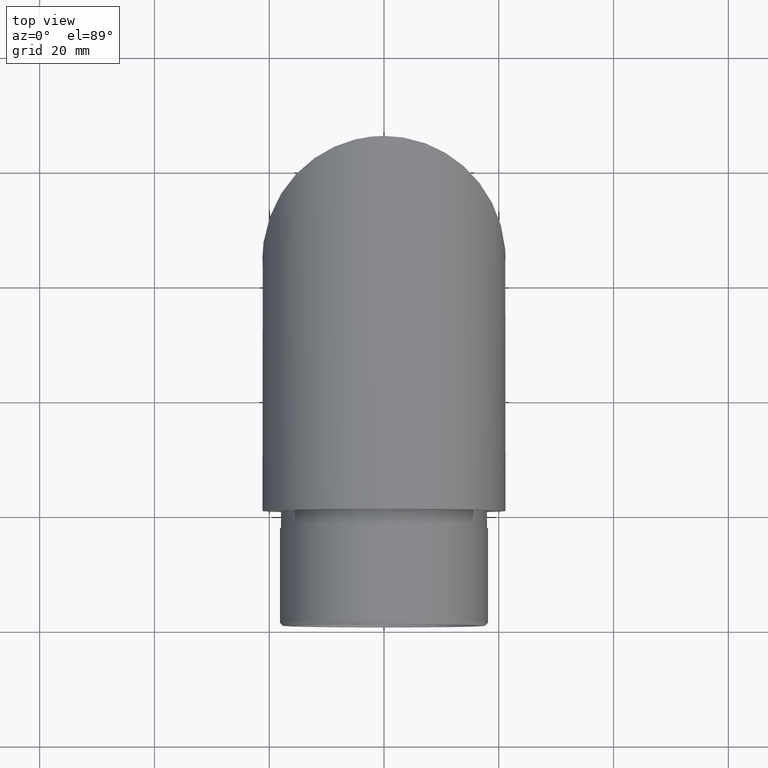
[diagram: clean part render]
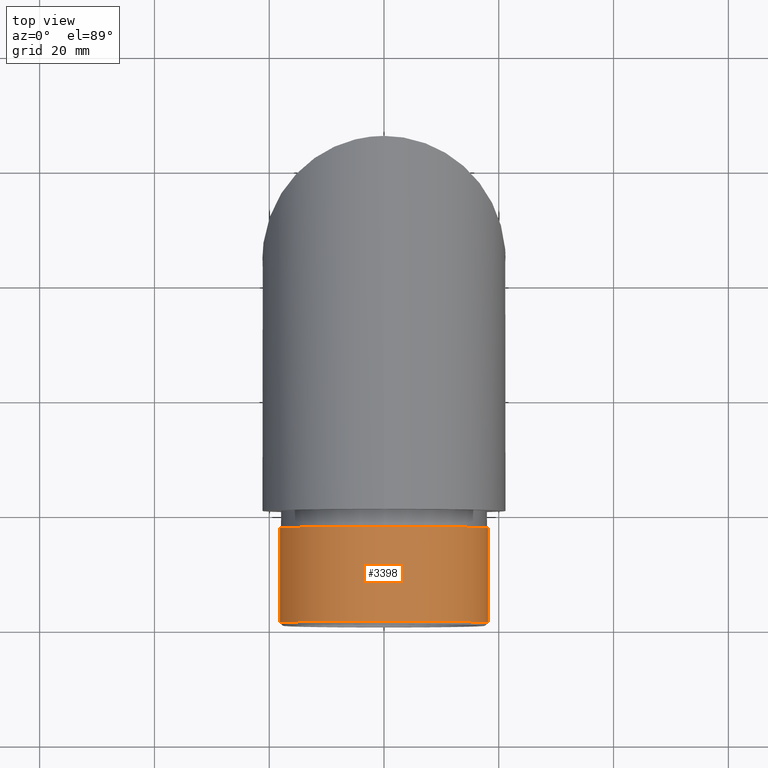
[diagram: same view with one face highlighted and labeled with its STEP entity id]
A machine part, top view. The second image highlights one B-rep face of the part: STEP entity #3398.
In plain terms, the highlighted cylindrical surface (bore or boss wall) has radius 18.15 mm, axis along (-0, 1, 0).
Its self-contained STEP definition (entity closure, byte-faithful):
#759 = CARTESIAN_POINT ( 'NONE',  ( 0.0000000000000000000, -19.49999999999997900, -18.14999999999999900 ) ) ;
#1052 = CIRCLE ( 'NONE', #3047, 18.14999999999999900 ) ;
#1135 = CIRCLE ( 'NONE', #3781, 18.14999999999999900 ) ;
#1288 = CARTESIAN_POINT ( 'NONE',  ( 0.0000000000000000000, -19.49999999999997900, 0.0000000000000000000 ) ) ;
#1333 = DIRECTION ( 'NONE',  ( 0.0000000000000000000, 0.0000000000000000000, -1.000000000000000000 ) ) ;
#1799 = VERTEX_POINT ( 'NONE', #7451 ) ;
#2193 = EDGE_CURVE ( 'NONE', #9298, #9298, #1052, .T. ) ;
#2577 = DIRECTION ( 'NONE',  ( -0.0000000000000000000, 1.000000000000000000, 0.0000000000000000000 ) ) ;
#3047 = AXIS2_PLACEMENT_3D ( 'NONE', #1288, #6068, #1333 ) ;
#3398 = ADVANCED_FACE ( 'NONE', ( #7278, #11811 ), #10458, .T. ) ;
#3781 = AXIS2_PLACEMENT_3D ( 'NONE', #4482, #5309, #6369 ) ;
#4331 = CARTESIAN_POINT ( 'NONE',  ( 0.0000000000000000000, -20.00000000000000000, 0.0000000000000000000 ) ) ;
#4482 = CARTESIAN_POINT ( 'NONE',  ( 0.0000000000000000000, -3.000000000000000000, 0.0000000000000000000 ) ) ;
#5309 = DIRECTION ( 'NONE',  ( 0.0000000000000000000, -1.000000000000000000, 0.0000000000000000000 ) ) ;
#6068 = DIRECTION ( 'NONE',  ( 0.0000000000000000000, 1.000000000000000000, 0.0000000000000000000 ) ) ;
#6369 = DIRECTION ( 'NONE',  ( 0.0000000000000000000, 0.0000000000000000000, -1.000000000000000000 ) ) ;
#7278 = FACE_OUTER_BOUND ( 'NONE', #12123, .T. ) ;
#7393 = DIRECTION ( 'NONE',  ( 0.0000000000000000000, 0.0000000000000000000, 1.000000000000000000 ) ) ;
#7451 = CARTESIAN_POINT ( 'NONE',  ( 0.0000000000000000000, -3.000000000000000000, -18.14999999999999900 ) ) ;
#8495 = ORIENTED_EDGE ( 'NONE', *, *, #2193, .T. ) ;
#9095 = EDGE_LOOP ( 'NONE', ( #9719 ) ) ;
#9298 = VERTEX_POINT ( 'NONE', #759 ) ;
#9719 = ORIENTED_EDGE ( 'NONE', *, *, #10669, .T. ) ;
#10104 = AXIS2_PLACEMENT_3D ( 'NONE', #4331, #2577, #7393 ) ;
#10458 = CYLINDRICAL_SURFACE ( 'NONE', #10104, 18.14999999999999900 ) ;
#10669 = EDGE_CURVE ( 'NONE', #1799, #1799, #1135, .T. ) ;
#11811 = FACE_OUTER_BOUND ( 'NONE', #9095, .T. ) ;
#12123 = EDGE_LOOP ( 'NONE', ( #8495 ) ) ;